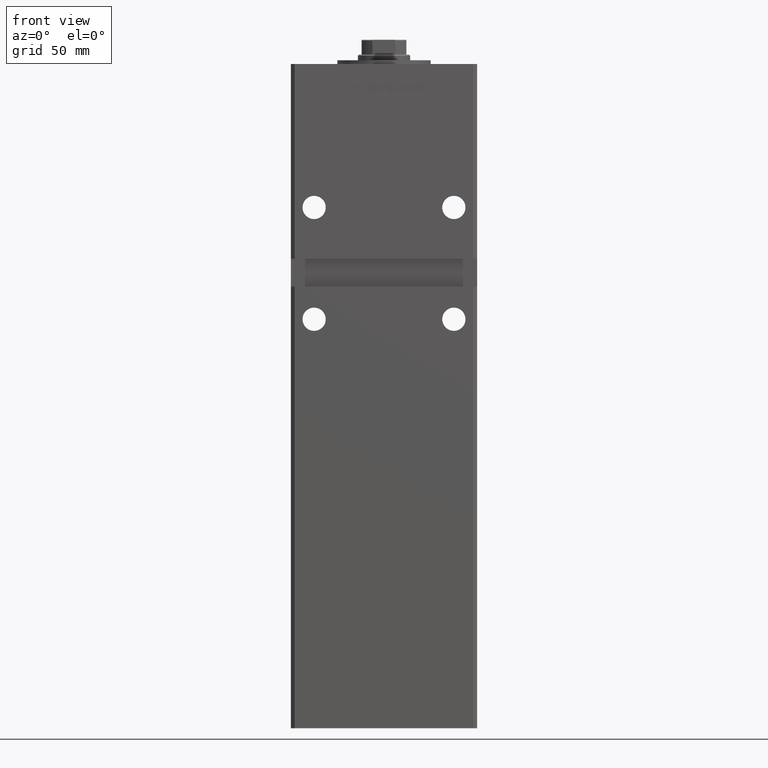
[diagram: clean part render]
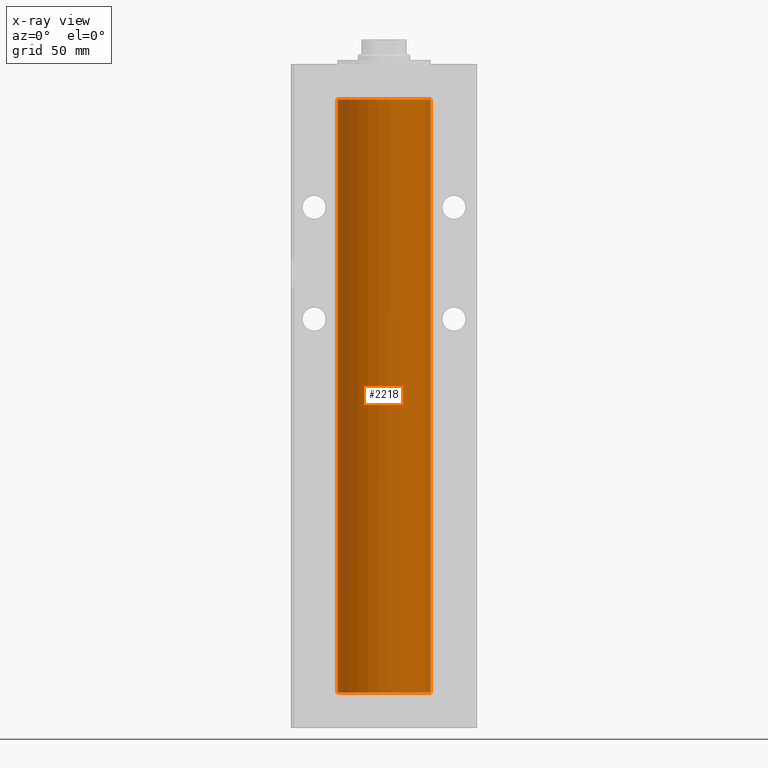
[diagram: x-ray — body ghosted, one internal face saturated and labeled with its STEP entity id]
A machine part, front view, then the same camera in x-ray: the body is ghosted and one INTERNAL B-rep face — a face not visible from any outside direction — is saturated and labeled: STEP entity #2218.
In plain terms, the highlighted cylindrical surface (partial cylindrical patch) has radius 25 mm, axis along (-0, -0, -1).
Its self-contained STEP definition (entity closure, byte-faithful):
#2218 = ADVANCED_FACE ( 'NONE', ( #43862 ), #31757, .F. ) ;
#2345 = EDGE_CURVE ( 'NONE', #51187, #16579, #13731, .T. ) ;
#2435 = VECTOR ( 'NONE', #25845, 1000.000000000000000 ) ;
#4197 = ORIENTED_EDGE ( 'NONE', *, *, #41271, .F. ) ;
#5224 = CARTESIAN_POINT ( 'NONE',  ( 25.00000000000000000, 3.061616997868383043E-15, 0.000000000000000000 ) ) ;
#7045 = CARTESIAN_POINT ( 'NONE',  ( 0.000000000000000000, 0.000000000000000000, 318.5000000000000000 ) ) ;
#8593 = AXIS2_PLACEMENT_3D ( 'NONE', #24106, #31380, #52588 ) ;
#10687 = AXIS2_PLACEMENT_3D ( 'NONE', #37035, #49406, #41071 ) ;
#13215 = VECTOR ( 'NONE', #22417, 1000.000000000000000 ) ;
#13731 = LINE ( 'NONE', #38181, #2435 ) ;
#13822 = CARTESIAN_POINT ( 'NONE',  ( -25.00000000000000000, 0.000000000000000000, 318.5000000000000000 ) ) ;
#14017 = ORIENTED_EDGE ( 'NONE', *, *, #20093, .T. ) ;
#14850 = DIRECTION ( 'NONE',  ( -0.000000000000000000, -0.000000000000000000, -1.000000000000000000 ) ) ;
#15852 = EDGE_CURVE ( 'NONE', #31795, #22855, #50638, .T. ) ;
#16028 = ORIENTED_EDGE ( 'NONE', *, *, #2345, .T. ) ;
#16579 = VERTEX_POINT ( 'NONE', #5224 ) ;
#18885 = CIRCLE ( 'NONE', #8593, 25.00000000000000000 ) ;
#20093 = EDGE_CURVE ( 'NONE', #31795, #51187, #28815, .T. ) ;
#22417 = DIRECTION ( 'NONE',  ( -0.000000000000000000, -0.000000000000000000, -1.000000000000000000 ) ) ;
#22855 = VERTEX_POINT ( 'NONE', #52417 ) ;
#23187 = DIRECTION ( 'NONE',  ( -1.000000000000000000, 0.000000000000000000, 0.000000000000000000 ) ) ;
#24106 = CARTESIAN_POINT ( 'NONE',  ( 0.000000000000000000, 0.000000000000000000, 0.000000000000000000 ) ) ;
#25139 = ORIENTED_EDGE ( 'NONE', *, *, #15852, .F. ) ;
#25845 = DIRECTION ( 'NONE',  ( -0.000000000000000000, -0.000000000000000000, -1.000000000000000000 ) ) ;
#27244 = EDGE_LOOP ( 'NONE', ( #14017, #16028, #4197, #25139 ) ) ;
#28815 = CIRCLE ( 'NONE', #10687, 25.00000000000000000 ) ;
#31380 = DIRECTION ( 'NONE',  ( -0.000000000000000000, 0.000000000000000000, 1.000000000000000000 ) ) ;
#31757 = CYLINDRICAL_SURFACE ( 'NONE', #37593, 25.00000000000000000 ) ;
#31795 = VERTEX_POINT ( 'NONE', #46708 ) ;
#37035 = CARTESIAN_POINT ( 'NONE',  ( 0.000000000000000000, 0.000000000000000000, 318.5000000000000000 ) ) ;
#37593 = AXIS2_PLACEMENT_3D ( 'NONE', #7045, #14850, #23187 ) ;
#38181 = CARTESIAN_POINT ( 'NONE',  ( 25.00000000000000000, 3.061616997868383043E-15, 318.5000000000000000 ) ) ;
#40611 = CARTESIAN_POINT ( 'NONE',  ( 25.00000000000000000, 3.061616997868383043E-15, 318.5000000000000000 ) ) ;
#41071 = DIRECTION ( 'NONE',  ( 1.000000000000000000, 0.000000000000000000, 0.000000000000000000 ) ) ;
#41271 = EDGE_CURVE ( 'NONE', #22855, #16579, #18885, .T. ) ;
#43862 = FACE_OUTER_BOUND ( 'NONE', #27244, .T. ) ;
#46708 = CARTESIAN_POINT ( 'NONE',  ( -25.00000000000000000, 0.000000000000000000, 318.5000000000000000 ) ) ;
#49406 = DIRECTION ( 'NONE',  ( -0.000000000000000000, 0.000000000000000000, 1.000000000000000000 ) ) ;
#50638 = LINE ( 'NONE', #13822, #13215 ) ;
#51187 = VERTEX_POINT ( 'NONE', #40611 ) ;
#52417 = CARTESIAN_POINT ( 'NONE',  ( -25.00000000000000000, 0.000000000000000000, 0.000000000000000000 ) ) ;
#52588 = DIRECTION ( 'NONE',  ( 1.000000000000000000, 0.000000000000000000, 0.000000000000000000 ) ) ;